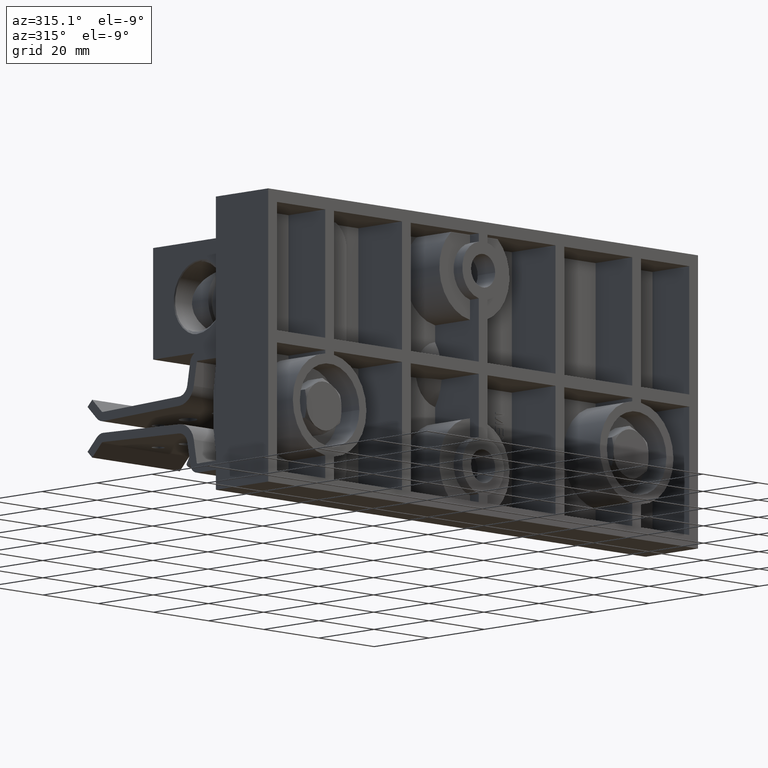
[diagram: clean part render]
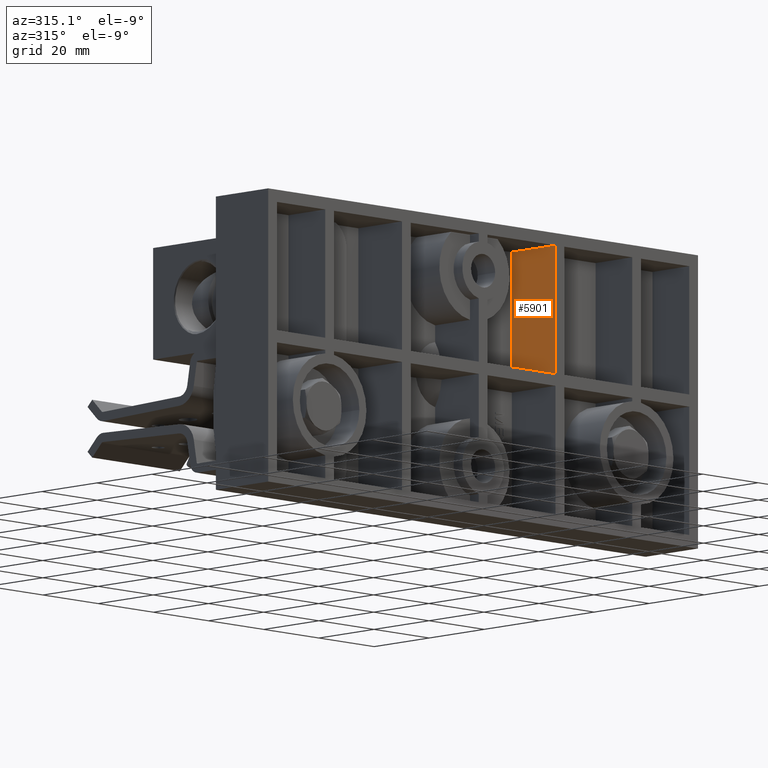
[diagram: same view with one face highlighted and labeled with its STEP entity id]
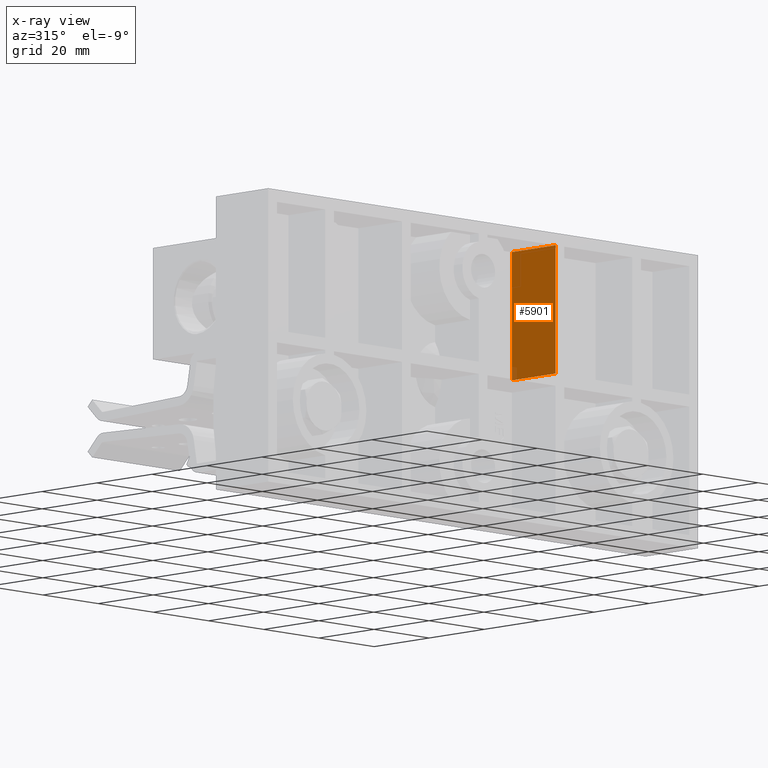
[diagram: x-ray of the same camera — body ghosted, the highlighted face saturated]
A machine part, auxiliary view. The second image highlights one B-rep face of the part: STEP entity #5901.
The next image is the same camera in x-ray: the body ghosted, the highlighted face saturated — about 1% of this face is hidden behind the body in this view.
In plain terms, the highlighted planar face has unit normal (1, 0, 0).
Its self-contained STEP definition (entity closure, byte-faithful):
#56 = CARTESIAN_POINT ( 'NONE',  ( 1.032500000000000200, 1.251854463851697800E-033, 0.06249999999999972900 ) ) ;
#624 = ORIENTED_EDGE ( 'NONE', *, *, #20569, .T. ) ;
#4017 = EDGE_CURVE ( 'NONE', #7206, #17724, #28183, .T. ) ;
#4816 = DIRECTION ( 'NONE',  ( 0.0000000000000000000, 1.000000000000000000, 1.848892746611746400E-032 ) ) ;
#5024 = ORIENTED_EDGE ( 'NONE', *, *, #10652, .F. ) ;
#5869 = CARTESIAN_POINT ( 'NONE',  ( 1.032500000000000200, 2.754079820473747800E-032, 1.375000000000000200 ) ) ;
#5901 = ADVANCED_FACE ( 'NONE', ( #13268 ), #29493, .F. ) ;
#7206 = VERTEX_POINT ( 'NONE', #19763 ) ;
#8307 = VECTOR ( 'NONE', #15013, 39.37007874015748100 ) ;
#8637 = VERTEX_POINT ( 'NONE', #5869 ) ;
#8886 = DIRECTION ( 'NONE',  ( 1.000000000000000000, 0.0000000000000000000, 0.0000000000000000000 ) ) ;
#9708 = VERTEX_POINT ( 'NONE', #56 ) ;
#10652 = EDGE_CURVE ( 'NONE', #9708, #17724, #25542, .T. ) ;
#11731 = EDGE_CURVE ( 'NONE', #9708, #8637, #31836, .T. ) ;
#13268 = FACE_OUTER_BOUND ( 'NONE', #14888, .T. ) ;
#13551 = ORIENTED_EDGE ( 'NONE', *, *, #11731, .T. ) ;
#14411 = CARTESIAN_POINT ( 'NONE',  ( 1.032500000000000200, 2.754079820473747800E-032, 1.375000000000000200 ) ) ;
#14888 = EDGE_LOOP ( 'NONE', ( #5024, #13551, #624, #28292 ) ) ;
#15013 = DIRECTION ( 'NONE',  ( 0.0000000000000000000, -2.002967142162725600E-032, -1.000000000000000000 ) ) ;
#15050 = DIRECTION ( 'NONE',  ( 0.0000000000000000000, 1.000000000000000000, 1.848892746611746400E-032 ) ) ;
#17686 = AXIS2_PLACEMENT_3D ( 'NONE', #24435, #8886, #27035 ) ;
#17724 = VERTEX_POINT ( 'NONE', #18118 ) ;
#17749 = CARTESIAN_POINT ( 'NONE',  ( 1.032500000000000200, -6.491294169886310300, 1.375000000000000200 ) ) ;
#18118 = CARTESIAN_POINT ( 'NONE',  ( 1.032500000000000200, 0.6250000000000000000, 0.06249999999999980600 ) ) ;
#18595 = VECTOR ( 'NONE', #15050, 39.37007874015748100 ) ;
#18829 = VECTOR ( 'NONE', #29939, 39.37007874015748100 ) ;
#19763 = CARTESIAN_POINT ( 'NONE',  ( 1.032500000000000200, 0.6250000000000000000, 1.375000000000000200 ) ) ;
#20569 = EDGE_CURVE ( 'NONE', #8637, #7206, #25872, .T. ) ;
#24435 = CARTESIAN_POINT ( 'NONE',  ( 1.032500000000000200, -6.491294169886310300, 1.375000000000000200 ) ) ;
#25542 = LINE ( 'NONE', #25739, #18595 ) ;
#25739 = CARTESIAN_POINT ( 'NONE',  ( 1.032500000000000200, -6.491294169886310300, 0.06249999999999972900 ) ) ;
#25872 = LINE ( 'NONE', #17749, #31129 ) ;
#27035 = DIRECTION ( 'NONE',  ( 0.0000000000000000000, -2.002967142162725300E-032, -1.000000000000000000 ) ) ;
#28183 = LINE ( 'NONE', #30555, #8307 ) ;
#28292 = ORIENTED_EDGE ( 'NONE', *, *, #4017, .T. ) ;
#29493 = PLANE ( 'NONE',  #17686 ) ;
#29939 = DIRECTION ( 'NONE',  ( 0.0000000000000000000, 2.002967142162725300E-032, 1.000000000000000000 ) ) ;
#30555 = CARTESIAN_POINT ( 'NONE',  ( 1.032500000000000200, 0.6250000000000000000, 1.375000000000000200 ) ) ;
#31129 = VECTOR ( 'NONE', #4816, 39.37007874015748100 ) ;
#31836 = LINE ( 'NONE', #14411, #18829 ) ;